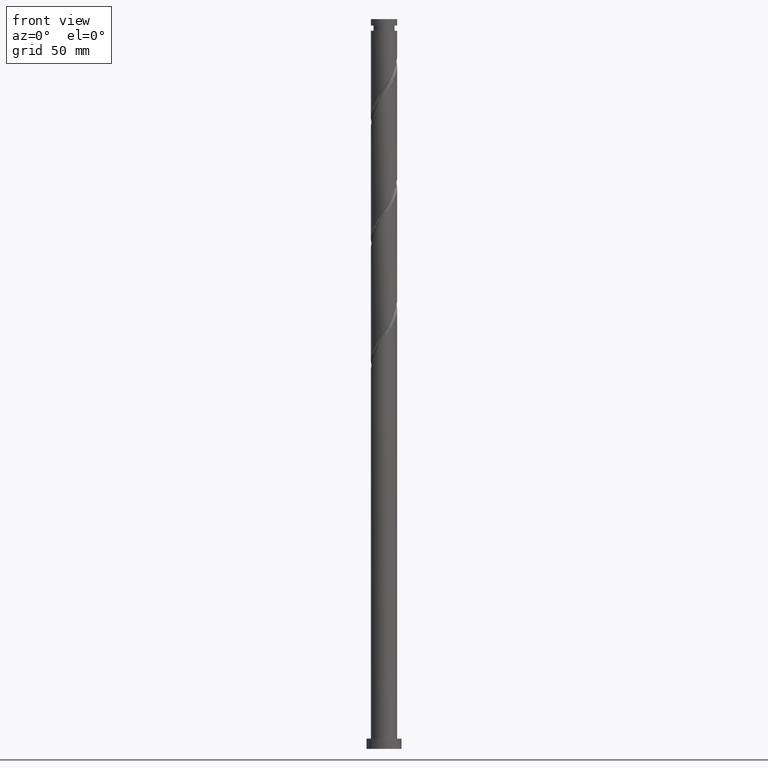
[diagram: clean part render]
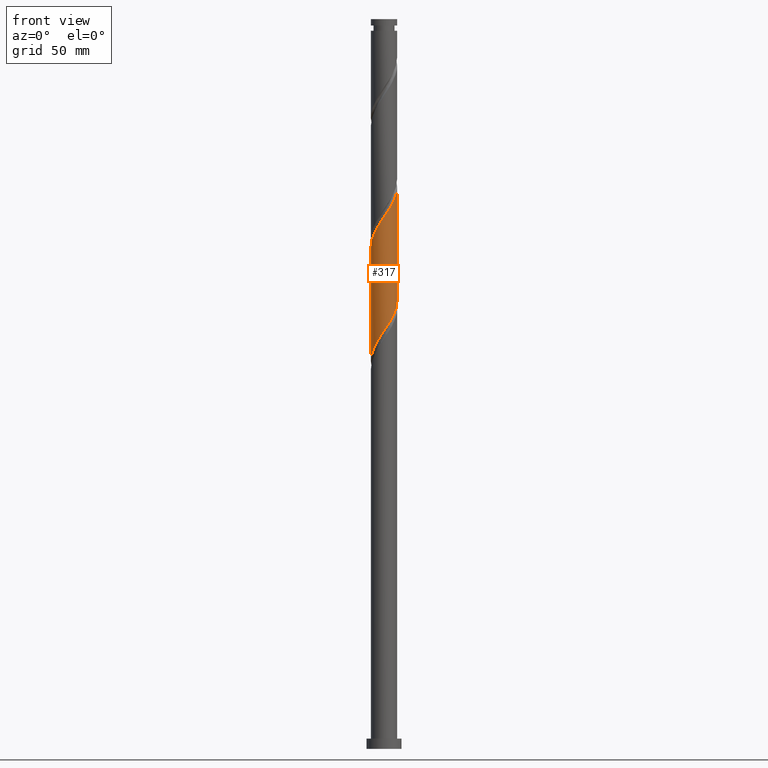
[diagram: same view with one face highlighted and labeled with its STEP entity id]
A machine part, front view. The second image highlights one B-rep face of the part: STEP entity #317.
In plain terms, the highlighted cylindrical surface (edge-blend (fillet) strip) has radius 9 mm, axis along (-0, -0, -1).
Its self-contained STEP definition (entity closure, byte-faithful):
#9 = CARTESIAN_POINT ( 'NONE',  ( 8.999928528269329320, -0.03586761831830977826, 307.1691453457802936 ) ) ;
#94 = CARTESIAN_POINT ( 'NONE',  ( 6.389272728671402390, -6.338548256395634795, 374.8774786791136648 ) ) ;
#105 = CARTESIAN_POINT ( 'NONE',  ( 3.477260898682818180, -8.301123818043667058, 369.6691453457802936 ) ) ;
#116 = CARTESIAN_POINT ( 'NONE',  ( 7.992622888744461029, -4.231279290908929624, 378.7837286791137785 ) ) ;
#130 = CARTESIAN_POINT ( 'NONE',  ( 4.970269554913015142, -7.503094065217680075, 294.1483120124468655 ) ) ;
#132 = EDGE_LOOP ( 'NONE', ( #298, #447, #414, #436 ) ) ;
#142 =( BOUNDED_CURVE ( )  B_SPLINE_CURVE ( 2, ( #936, #1607, #9, #1459, #1093, #1428, #288, #797, #805, #465, #1580, #1777, #130, #1759, #157, #1269, #777, #305, #483, #168, #1130, #1419, #2102, #2072, #616, #1260, #2093, #1119, #1102, #1909, #1589, #1928, #455, #1749, #945 ),
 .UNSPECIFIED., .F., .T. ) 
 B_SPLINE_CURVE_WITH_KNOTS ( ( 3, 2, 2, 2, 2, 2, 2, 2, 2, 2, 2, 2, 2, 2, 2, 2, 2, 3 ),
 ( 0.8045286902180869282, 0.8046875000000000000, 0.8125000000000000000, 0.8203125000000000000, 0.8281250000000000000, 0.8359375000000000000, 0.8437500000000000000, 0.8515625000000000000, 0.8593750000000000000, 0.8671875000000000000, 0.8750000000000000000, 0.8828125000000000000, 0.8906250000000000000, 0.8984375000000000000, 0.9062500000000000000, 0.9140625000000000000, 0.9218750000000000000, 0.9295286902180871502 ),
 .UNSPECIFIED. ) 
 CURVE ( )  GEOMETRIC_REPRESENTATION_ITEM ( )  RATIONAL_B_SPLINE_CURVE ( ( 0.9089165573359326844, 0.9090019243628375545, 0.9090909090909294887, 0.9047133878838355958, 0.9090909090909294887, 0.9047133878838355958, 0.9090909090909294887, 0.9047133878838355958, 0.9090909090909294887, 0.9047133878838355958, 0.9090909090909294887, 0.9047133878838355958, 0.9090909090909294887, 0.9047133878838355958, 0.9090909090909294887, 0.9047133878838355958, 0.9090909090909294887, 0.9047133878838355958, 0.9090909090909294887, 0.9047133878838355958, 0.9090909090909294887, 0.9047133878838355958, 0.9090909090909294887, 0.9047133878838355958, 0.9090909090909294887, 0.9047133878838355958, 0.9090909090909294887, 0.9047133878838355958, 0.9090909090909294887, 0.9047133878838355958, 0.9090909090909294887, 0.9047133878838355958, 0.9090909090909294887, 0.9048023726119274190, 0.9089165573359327954 ) ) 
 REPRESENTATION_ITEM ( '' )  );
#157 = CARTESIAN_POINT ( 'NONE',  ( 3.410986181794382510, -8.328575704621277609, 291.5441453457802936 ) ) ;
#160 = CARTESIAN_POINT ( 'NONE',  ( -8.999928528269348860, -0.03586761831830832109, 343.6274786791136648 ) ) ;
#168 = CARTESIAN_POINT ( 'NONE',  ( -0.9222832091817350086, -8.996395876206085163, 285.0337286791137217 ) ) ;
#244 = EDGE_CURVE ( 'NONE', #1528, #965, #1310, .T. ) ;
#251 = CARTESIAN_POINT ( 'NONE',  ( 5.764980215651893225, -6.967836693874138732, 373.5753953457802936 ) ) ;
#258 = VERTEX_POINT ( 'NONE', #1959 ) ;
#261 = CARTESIAN_POINT ( 'NONE',  ( -4.231279290908926072, -7.992622888744462806, 357.9503953457804073 ) ) ;
#284 = CARTESIAN_POINT ( 'NONE',  ( -5.709259818917129081, -7.013565241690921326, 355.3462286791137217 ) ) ;
#288 = CARTESIAN_POINT ( 'NONE',  ( 8.301123818043651070, -3.477260898682816403, 301.9608120124469792 ) ) ;
#298 = ORIENTED_EDGE ( 'NONE', *, *, #244, .F. ) ;
#305 = CARTESIAN_POINT ( 'NONE',  ( 0.8505479725451118300, -9.003461180332582359, 287.6378953457804641 ) ) ;
#317 = ADVANCED_FACE ( 'NONE', ( #564 ), #1236, .T. ) ;
#405 = CARTESIAN_POINT ( 'NONE',  ( 4.294850232963518089, -7.958643512293401834, 370.9712286791135512 ) ) ;
#414 = ORIENTED_EDGE ( 'NONE', *, *, #2099, .T. ) ;
#420 = DIRECTION ( 'NONE',  ( -0.000000000000000000, -0.000000000000000000, -1.000000000000000000 ) ) ;
#428 = CARTESIAN_POINT ( 'NONE',  ( -7.463240103083769839, -5.029915224307705657, 351.4399786791136648 ) ) ;
#436 = ORIENTED_EDGE ( 'NONE', *, *, #593, .F. ) ;
#441 = CARTESIAN_POINT ( 'NONE',  ( -6.338548256395633906, -6.389272728671402390, 354.0441453457802368 ) ) ;
#447 = ORIENTED_EDGE ( 'NONE', *, *, #1744, .F. ) ;
#455 = CARTESIAN_POINT ( 'NONE',  ( -8.833994850415340494, -1.720620522612483327, 268.1066453457802936 ) ) ;
#465 = CARTESIAN_POINT ( 'NONE',  ( 6.967836693874127185, -5.764980215651887896, 298.0545620124470929 ) ) ;
#483 = CARTESIAN_POINT ( 'NONE',  ( -0.03586761831830934805, -8.999928528269329320, 286.3358120124469792 ) ) ;
#564 = FACE_OUTER_BOUND ( 'NONE', #132, .T. ) ;
#593 = EDGE_CURVE ( 'NONE', #965, #1930, #142, .T. ) ;
#606 = DIRECTION ( 'NONE',  ( -1.000000000000000000, 0.000000000000000000, 0.000000000000000000 ) ) ;
#612 = CARTESIAN_POINT ( 'NONE',  ( -7.958643512293401834, -4.294850232963518089, 350.1378953457804073 ) ) ;
#616 = CARTESIAN_POINT ( 'NONE',  ( -5.029915224307700328, -7.463240103083756516, 278.5233120124469224 ) ) ;
#742 = CARTESIAN_POINT ( 'NONE',  ( 0.03586761831830599656, -8.999928528269348860, 364.4608120124469224 ) ) ;
#752 = CARTESIAN_POINT ( 'NONE',  ( -4.970269554913028465, -7.503094065217691622, 356.6483120124470361 ) ) ;
#777 = CARTESIAN_POINT ( 'NONE',  ( 1.720620522612482661, -8.833994850415340494, 288.9399786791136648 ) ) ;
#797 = CARTESIAN_POINT ( 'NONE',  ( 7.958643512293386735, -4.294850232963515424, 300.6587286791137217 ) ) ;
#805 = CARTESIAN_POINT ( 'NONE',  ( 7.463240103083752075, -5.029915224307703880, 299.3566453457802368 ) ) ;
#808 = CARTESIAN_POINT ( 'NONE',  ( -8.996395876206099373, -0.9222832091817332323, 344.9295620124470361 ) ) ;
#910 = CARTESIAN_POINT ( 'NONE',  ( 7.013565241690918661, -5.709259818917129081, 376.1795620124471498 ) ) ;
#936 = CARTESIAN_POINT ( 'NONE',  ( 9.000000000000000000, 7.742349579828170467E-15, 307.2218423237771390 ) ) ;
#945 = CARTESIAN_POINT ( 'NONE',  ( -9.000000000000000000, -6.754519710471182682E-15, 265.5551756571105102 ) ) ;
#965 = VERTEX_POINT ( 'NONE', #1992 ) ;
#986 = CARTESIAN_POINT ( 'NONE',  ( 9.000000000000015987, 1.262931168823190377E-14, 385.2414483677833914 ) ) ;
#1013 = DIRECTION ( 'NONE',  ( -0.000000000000000000, -0.000000000000000000, -1.000000000000000000 ) ) ;
#1077 = CARTESIAN_POINT ( 'NONE',  ( -2.590693072679859377, -8.664528520498114617, 360.5545620124470929 ) ) ;
#1088 = CARTESIAN_POINT ( 'NONE',  ( -8.301123818043667058, -3.477260898682816848, 348.8358120124469792 ) ) ;
#1093 = CARTESIAN_POINT ( 'NONE',  ( 8.820000000000000284, -1.790977386791924975, 304.5649786791136080 ) ) ;
#1102 = CARTESIAN_POINT ( 'NONE',  ( -7.503094065217679187, -4.970269554913015142, 273.3149786791135512 ) ) ;
#1119 = CARTESIAN_POINT ( 'NONE',  ( -7.013565241690911556, -5.709259818917118423, 274.6170620124470361 ) ) ;
#1130 = CARTESIAN_POINT ( 'NONE',  ( -1.790977386791924308, -8.820000000000000284, 283.7316453457802936 ) ) ;
#1173 = CARTESIAN_POINT ( 'NONE',  ( 9.000000000000012434, -0.8683183343608477101, 383.9654682623675512 ) ) ;
#1196 = DIRECTION ( 'NONE',  ( -0.000000000000000000, -0.000000000000000000, -1.000000000000000000 ) ) ;
#1233 = CARTESIAN_POINT ( 'NONE',  ( 2.659671564402114274, -8.643604123793931393, 368.3670620124469792 ) ) ;
#1236 = CYLINDRICAL_SURFACE ( 'NONE', #1347, 9.000000000000001776 ) ;
#1244 = CARTESIAN_POINT ( 'NONE',  ( -9.000000000000015987, -0.01793388036835466895, 343.6011352556340057 ) ) ;
#1253 = CARTESIAN_POINT ( 'NONE',  ( -9.000000000000000000, -6.754519710471182682E-15, 265.5551756571105102 ) ) ;
#1255 = CARTESIAN_POINT ( 'NONE',  ( -3.410986181794391836, -8.328575704621290043, 359.2524786791135512 ) ) ;
#1260 = CARTESIAN_POINT ( 'NONE',  ( -5.764980215651887008, -6.967836693874127185, 277.2212286791136648 ) ) ;
#1262 = VECTOR ( 'NONE', #1013, 1000.000000000000000 ) ;
#1269 = CARTESIAN_POINT ( 'NONE',  ( 2.590693072679852715, -8.664528520498102182, 290.2420620124470361 ) ) ;
#1290 = CARTESIAN_POINT ( 'NONE',  ( 0.9222832091817327882, -8.996395876206099373, 365.7628953457804073 ) ) ;
#1310 = LINE ( 'NONE', #1514, #1413 ) ;
#1313 =( BOUNDED_CURVE ( )  B_SPLINE_CURVE ( 2, ( #2033, #1244, #160, #808, #2068, #1381, #1088, #612, #428, #1452, #441, #284, #752, #261, #1255, #1077, #2045, #1723, #742, #1290, #1542, #1233, #105, #405, #1699, #251, #94, #910, #1554, #116, #1565, #1404, #2056, #1173, #986 ),
 .UNSPECIFIED., .F., .T. ) 
 B_SPLINE_CURVE_WITH_KNOTS ( ( 3, 2, 2, 2, 2, 2, 2, 2, 2, 2, 2, 2, 2, 2, 2, 2, 2, 3 ),
 ( 0.3045286902180872612, 0.3046875000000000000, 0.3125000000000000000, 0.3203125000000000000, 0.3281250000000000000, 0.3359375000000000000, 0.3437500000000000000, 0.3515625000000000000, 0.3593750000000000000, 0.3671875000000000000, 0.3750000000000000000, 0.3828125000000000000, 0.3906250000000000000, 0.3984375000000000000, 0.4062500000000000000, 0.4140625000000000000, 0.4218750000000000000, 0.4295286902180870947 ),
 .UNSPECIFIED. ) 
 CURVE ( )  GEOMETRIC_REPRESENTATION_ITEM ( )  RATIONAL_B_SPLINE_CURVE ( ( 0.9089165573359390127, 0.9090019243628437717, 0.9090909090909354839, 0.9047133878838415910, 0.9090909090909354839, 0.9047133878838415910, 0.9090909090909354839, 0.9047133878838415910, 0.9090909090909354839, 0.9047133878838415910, 0.9090909090909354839, 0.9047133878838415910, 0.9090909090909354839, 0.9047133878838415910, 0.9090909090909354839, 0.9047133878838415910, 0.9090909090909354839, 0.9047133878838415910, 0.9090909090909354839, 0.9047133878838415910, 0.9090909090909354839, 0.9047133878838415910, 0.9090909090909354839, 0.9047133878838415910, 0.9090909090909354839, 0.9047133878838415910, 0.9090909090909354839, 0.9047133878838415910, 0.9090909090909354839, 0.9047133878838415910, 0.9090909090909354839, 0.9047133878838415910, 0.9090909090909354839, 0.9048023726119335253, 0.9089165573359386796 ) ) 
 REPRESENTATION_ITEM ( '' )  );
#1347 = AXIS2_PLACEMENT_3D ( 'NONE', #2060, #420, #606 ) ;
#1381 = CARTESIAN_POINT ( 'NONE',  ( -8.643604123793931393, -2.659671564402114718, 347.5337286791137217 ) ) ;
#1404 = CARTESIAN_POINT ( 'NONE',  ( 8.664528520498114617, -2.590693072679860265, 381.3878953457804073 ) ) ;
#1413 = VECTOR ( 'NONE', #1196, 1000.000000000000000 ) ;
#1419 = CARTESIAN_POINT ( 'NONE',  ( -2.659671564402113830, -8.643604123793917182, 282.4295620124469792 ) ) ;
#1428 = CARTESIAN_POINT ( 'NONE',  ( 8.643604123793918959, -2.659671564402111166, 303.2628953457803505 ) ) ;
#1452 = CARTESIAN_POINT ( 'NONE',  ( -6.967836693874138732, -5.764980215651893225, 352.7420620124469792 ) ) ;
#1459 = CARTESIAN_POINT ( 'NONE',  ( 8.996395876206083386, -0.9222832091817394495, 305.8670620124469792 ) ) ;
#1498 = LINE ( 'NONE', #1991, #1262 ) ;
#1514 = CARTESIAN_POINT ( 'NONE',  ( 9.000000000000001776, 1.102182119232617911E-15, 500.0000000000000000 ) ) ;
#1528 = VERTEX_POINT ( 'NONE', #1616 ) ;
#1542 = CARTESIAN_POINT ( 'NONE',  ( 1.790977386791924308, -8.820000000000012719, 367.0649786791137217 ) ) ;
#1554 = CARTESIAN_POINT ( 'NONE',  ( 7.503094065217691622, -4.970269554913029353, 377.4816453457804073 ) ) ;
#1565 = CARTESIAN_POINT ( 'NONE',  ( 8.328575704621288267, -3.410986181794391836, 380.0858120124469792 ) ) ;
#1580 = CARTESIAN_POINT ( 'NONE',  ( 6.338548256395620584, -6.389272728671397061, 296.7524786791135512 ) ) ;
#1589 = CARTESIAN_POINT ( 'NONE',  ( -8.328575704621277609, -3.410986181794382510, 270.7108120124469224 ) ) ;
#1607 = CARTESIAN_POINT ( 'NONE',  ( 9.000000000000000000, -0.01793388036831858670, 307.1954887692598390 ) ) ;
#1616 = CARTESIAN_POINT ( 'NONE',  ( 9.000000000000015987, 1.262931168823190377E-14, 385.2414483677833914 ) ) ;
#1699 = CARTESIAN_POINT ( 'NONE',  ( 5.029915224307705657, -7.463240103083770727, 372.2733120124470361 ) ) ;
#1723 = CARTESIAN_POINT ( 'NONE',  ( -0.8505479725451170481, -9.003461180332596570, 363.1587286791137217 ) ) ;
#1744 = EDGE_CURVE ( 'NONE', #258, #1528, #1313, .T. ) ;
#1749 = CARTESIAN_POINT ( 'NONE',  ( -9.000000000000001776, -0.8683183343608361637, 266.8311557625264072 ) ) ;
#1759 = CARTESIAN_POINT ( 'NONE',  ( 4.231279290908916302, -7.992622888744453036, 292.8462286791136648 ) ) ;
#1777 = CARTESIAN_POINT ( 'NONE',  ( 5.709259818917114870, -7.013565241690915109, 295.4503953457803505 ) ) ;
#1909 = CARTESIAN_POINT ( 'NONE',  ( -7.992622888744453036, -4.231279290908918078, 272.0128953457804073 ) ) ;
#1928 = CARTESIAN_POINT ( 'NONE',  ( -8.664528520498102182, -2.590693072679854048, 269.4087286791137217 ) ) ;
#1930 = VERTEX_POINT ( 'NONE', #1253 ) ;
#1959 = CARTESIAN_POINT ( 'NONE',  ( -9.000000000000017764, 9.345243330105487039E-15, 343.5747817011167626 ) ) ;
#1991 = CARTESIAN_POINT ( 'NONE',  ( -9.000000000000001776, 0.000000000000000000, 500.0000000000000000 ) ) ;
#1992 = CARTESIAN_POINT ( 'NONE',  ( 9.000000000000000000, 7.742349579828170467E-15, 307.2218423237771958 ) ) ;
#2033 = CARTESIAN_POINT ( 'NONE',  ( -9.000000000000017764, 9.345243330105487039E-15, 343.5747817011167058 ) ) ;
#2045 = CARTESIAN_POINT ( 'NONE',  ( -1.720620522612488656, -8.833994850415354705, 361.8566453457803505 ) ) ;
#2056 = CARTESIAN_POINT ( 'NONE',  ( 8.833994850415352929, -1.720620522612493319, 382.6899786791135512 ) ) ;
#2060 = CARTESIAN_POINT ( 'NONE',  ( 0.000000000000000000, 0.000000000000000000, 500.0000000000000000 ) ) ;
#2068 = CARTESIAN_POINT ( 'NONE',  ( -8.820000000000012719, -1.790977386791924530, 346.2316453457803505 ) ) ;
#2072 = CARTESIAN_POINT ( 'NONE',  ( -4.294850232963515424, -7.958643512293386735, 279.8253953457802936 ) ) ;
#2093 = CARTESIAN_POINT ( 'NONE',  ( -6.389272728671397061, -6.338548256395624136, 275.9191453457802368 ) ) ;
#2099 = EDGE_CURVE ( 'NONE', #258, #1930, #1498, .T. ) ;
#2102 = CARTESIAN_POINT ( 'NONE',  ( -3.477260898682815515, -8.301123818043651070, 281.1274786791136080 ) ) ;